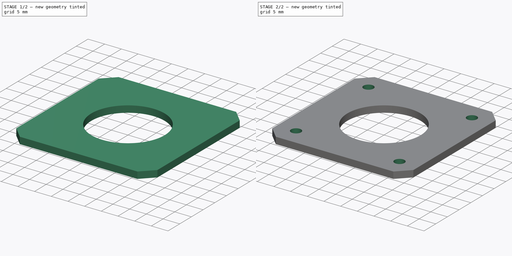
[diagram: build sequence overview — one tinted view per stage of 2, left to right]
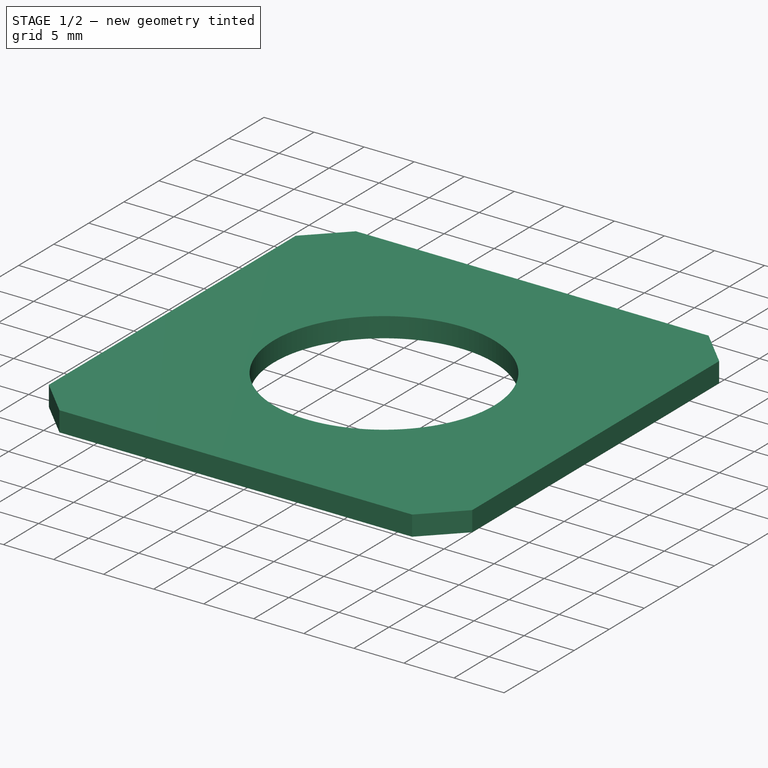
[diagram: stage 1 of 2 — iso view after this stage's code; geometry added in this stage tinted green]
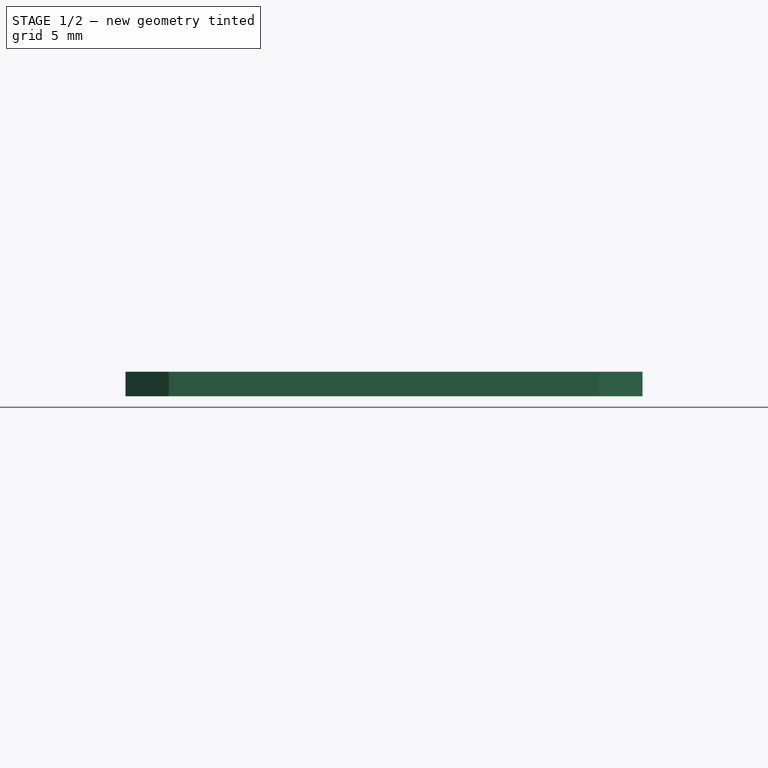
[diagram: stage 1 of 2 — front view after this stage's code; geometry added in this stage tinted green]
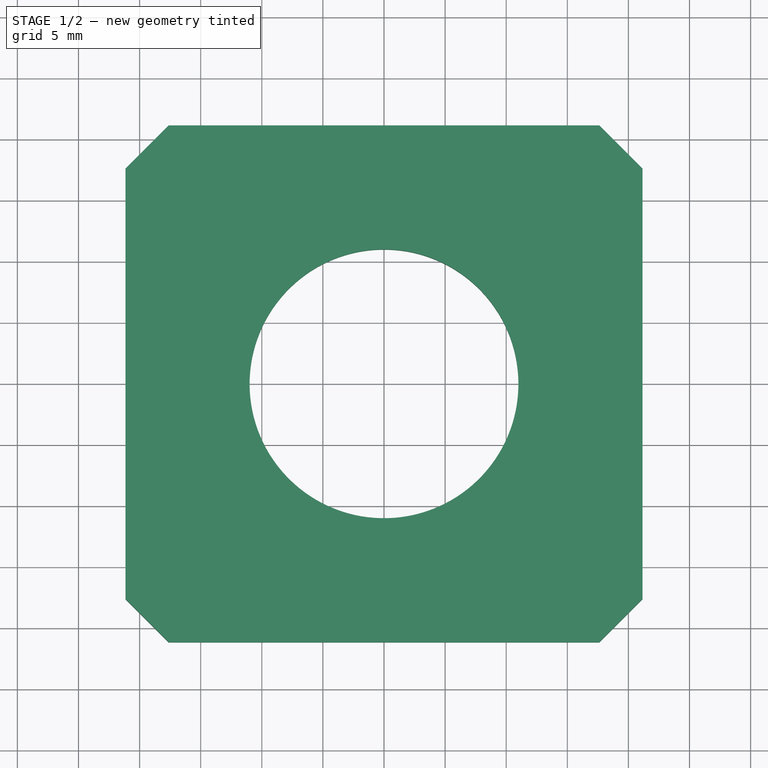
[diagram: stage 1 of 2 — top view after this stage's code; geometry added in this stage tinted green]
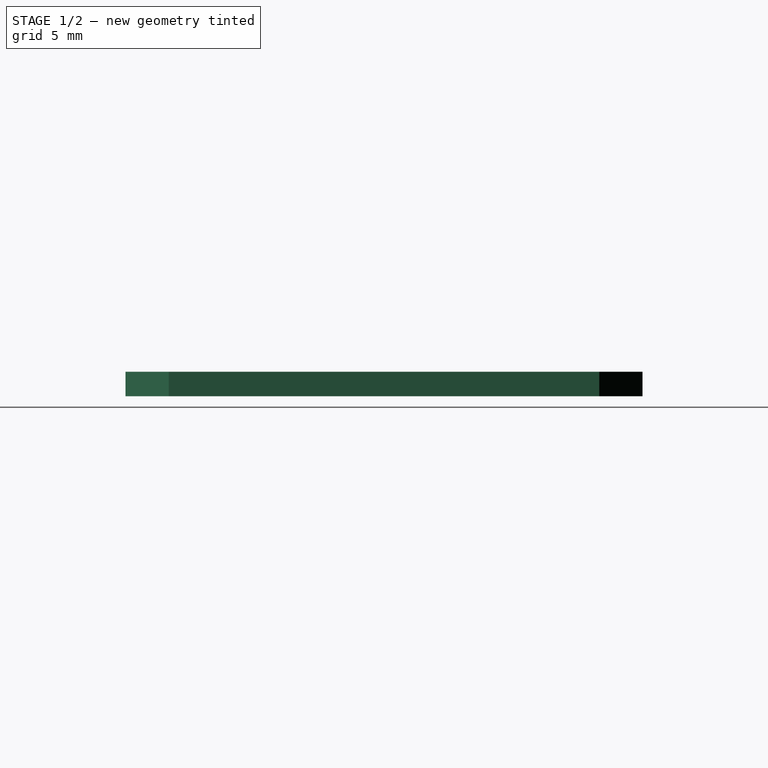
[diagram: stage 1 of 2 — right view after this stage's code; geometry added in this stage tinted green]
FCSTD DOCUMENT  (FreeCAD 1.0R39109 (Git))
Label: Steppermotor-Supportstütze-DerGerät
License: All rights reserved
LicenseURL: https://en.wikipedia.org/wiki/All_rights_reserved
objects: Measure::MeasurePython×3, Sketcher::SketchObject×2, PartDesign::Pad×1, PartDesign::Chamfer×1, PartDesign::Pocket×1, PartDesign::Body×1, App::DocumentObjectGroup×1
note: 14 computed .brp shape members not serialized (recipe doc carries the construction recipe); baked Part::Feature solids carry a one-line shape summary decoded from their .brp

FEATURE [Sketcher::SketchObject] Sketch
  ArcFitTolerance = 1e-06
  AttachmentSupport = -> [XY_Plane]
  FullyConstrained = true
  MakeInternals = false
  MapMode = 5
  sketch-geometry (9):
    g0: LineSegment StartX=-21.15 StartY=-21.15 StartZ=0 EndX=-21.15 EndY=21.15 EndZ=0
    g1: LineSegment StartX=-21.15 StartY=21.15 StartZ=0 EndX=21.15 EndY=21.15 EndZ=0
    g2: LineSegment StartX=21.15 StartY=21.15 StartZ=0 EndX=21.15 EndY=-21.15 EndZ=0
    g3: LineSegment StartX=21.15 StartY=-21.15 StartZ=0 EndX=-21.15 EndY=-21.15 EndZ=0
    g4: LineSegment [constr] StartX=-21.15 StartY=21.15 StartZ=0 EndX=0 EndY=0 EndZ=0
    g5: LineSegment [constr] StartX=0 StartY=0 StartZ=0 EndX=21.15 EndY=21.15 EndZ=0
    g6: LineSegment [constr] StartX=0 StartY=0 StartZ=0 EndX=21.15 EndY=-21.15 EndZ=0
    g7: LineSegment [constr] StartX=0 StartY=0 StartZ=0 EndX=-21.15 EndY=-21.15 EndZ=0
    g8: Circle CenterX=0 CenterY=0 CenterZ=0 NormalX=0 NormalY=0 NormalZ=1 AngleXU=0 Radius=11
  constraints (22):
    c: Vertical(g0)
    c: Coincident(g0,g1)
    c: Horizontal(g1)
    c: Coincident(g1,g2)
    c: Vertical(g2)
    c: Coincident(g2,g3)
    c: Coincident(g3,g0)
    c: Horizontal(g3)
    c: Equal(g1,g2)
    c: Coincident(g4,g0)
    c: Coincident(g4,g-1)
    c: Coincident(g5,g4)
    c: Coincident(g5,g1)
    c: Coincident(g6,g4)
    c: Coincident(g6,g2)
    c: Coincident(g7,g4)
    c: Coincident(g7,g0)
    c: Equal(g7,g6)
    c: Equal(g6,g5)
    c: DistanceY(g0,g0) = 42.3
    c: Diameter(g8) = 22
    c: Coincident(g8,g4)
FEATURE [PartDesign::Pad] Pad
  Direction = (0,0,1)
  Length = 2
  Length2 = 10
  Profile = -> Sketch
  ReferenceAxis = -> Sketch [N_Axis]
  Refine = true
  Suppressed = false
  Type = 0
FEATURE [PartDesign::Chamfer] Chamfer
  Angle = 45
  Base = -> Pad [Edge8,Edge5,Edge1,Edge2]
  BaseFeature = -> Pad
  ChamferType = 0
  FlipDirection = false
  Refine = true
  Size = 3.53553
  Size2 = 1
  SupportTransform = false
  Suppressed = false
  UseAllEdges = false
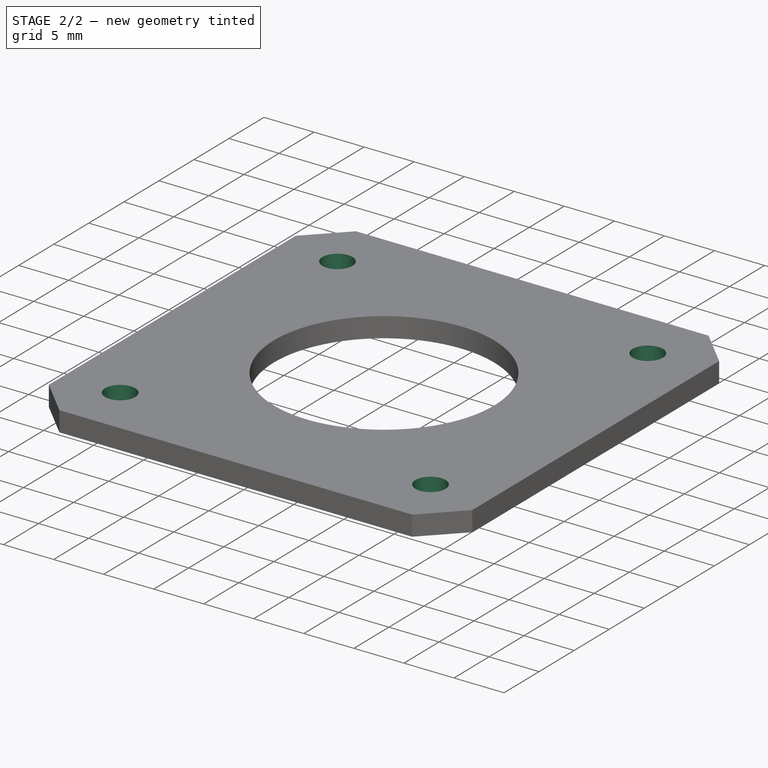
[diagram: stage 2 of 2 — iso view after this stage's code; geometry added in this stage tinted green]
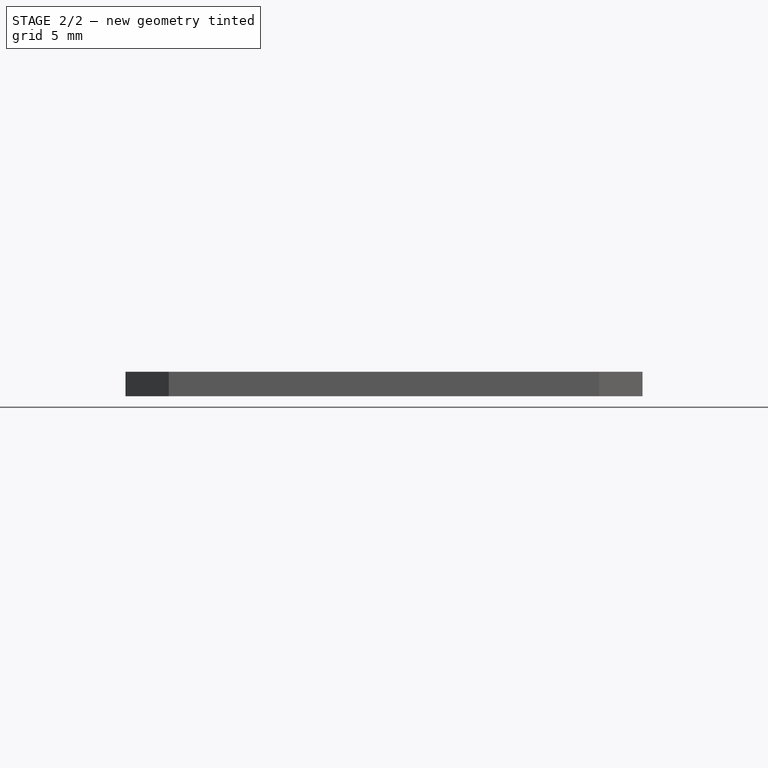
[diagram: stage 2 of 2 — front view after this stage's code; geometry added in this stage tinted green]
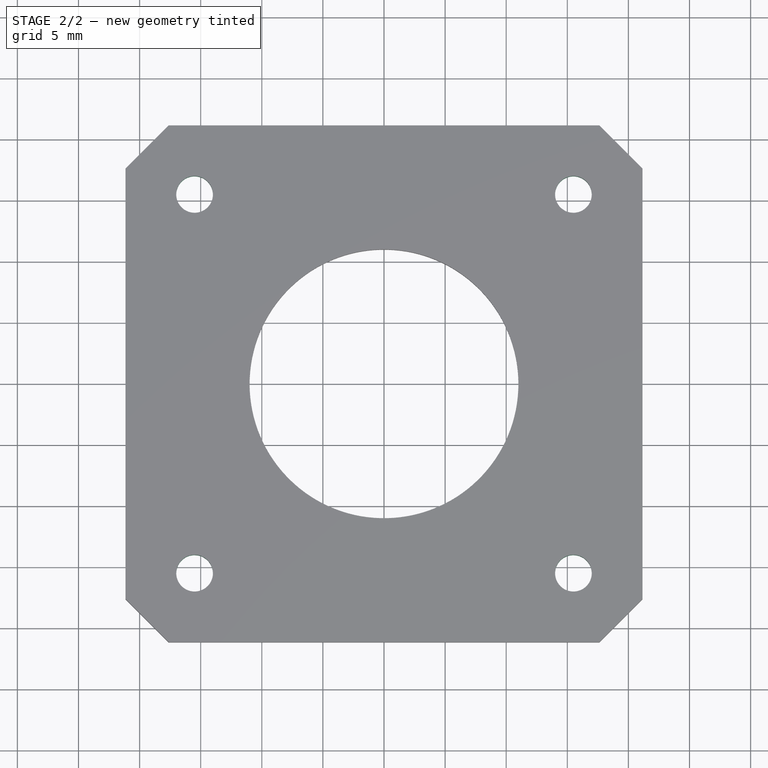
[diagram: stage 2 of 2 — top view after this stage's code; geometry added in this stage tinted green]
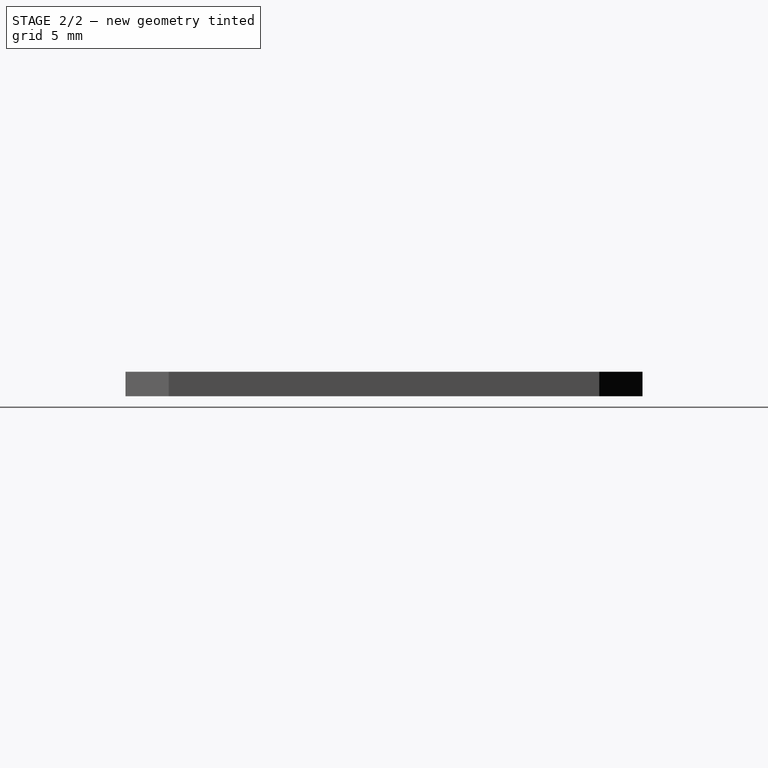
[diagram: stage 2 of 2 — right view after this stage's code; geometry added in this stage tinted green]
FEATURE [Sketcher::SketchObject] Sketch001
  ArcFitTolerance = 1e-06
  AttachmentSupport = -> [Chamfer]
  FullyConstrained = true
  MakeInternals = false
  MapMode = 5
  Placement = pos=(0,0,2) rot=(0,0,1;0rad)
  sketch-geometry (12):
    g0: Circle CenterX=15.5 CenterY=15.5 CenterZ=0 NormalX=0 NormalY=0 NormalZ=1 AngleXU=0 Radius=1.5
    g1: Circle CenterX=-15.5 CenterY=-15.5 CenterZ=0 NormalX=0 NormalY=0 NormalZ=1 AngleXU=0 Radius=1.5
    g2: Circle CenterX=15.5 CenterY=-15.5 CenterZ=0 NormalX=0 NormalY=0 NormalZ=1 AngleXU=0 Radius=1.5
    g3: Circle CenterX=-15.5 CenterY=15.5 CenterZ=0 NormalX=0 NormalY=0 NormalZ=1 AngleXU=0 Radius=1.5
    g4: LineSegment [constr] StartX=-15.5 StartY=15.5 StartZ=0 EndX=15.5 EndY=15.5 EndZ=0
    g5: LineSegment [constr] StartX=15.5 StartY=15.5 StartZ=0 EndX=15.5 EndY=-15.5 EndZ=0
    g6: LineSegment [constr] StartX=15.5 StartY=-15.5 StartZ=0 EndX=-15.5 EndY=-15.5 EndZ=0
    g7: LineSegment [constr] StartX=-15.5 StartY=-15.5 StartZ=0 EndX=-15.5 EndY=15.5 EndZ=0
    g8: LineSegment [constr] StartX=-15.5 StartY=15.5 StartZ=0 EndX=0 EndY=0 EndZ=0
    g9: LineSegment [constr] StartX=0 StartY=0 StartZ=0 EndX=-15.5 EndY=-15.5 EndZ=0
    g10: LineSegment [constr] StartX=0 StartY=0 StartZ=0 EndX=15.5 EndY=-15.5 EndZ=0
    g11: LineSegment [constr] StartX=0 StartY=0 StartZ=0 EndX=15.5 EndY=15.5 EndZ=0
  constraints (28):
    c: Diameter(g0) = 3
    c: Diameter(g1) = 3
    c: Diameter(g2) = 3
    c: Diameter(g3) = 3
    c: Coincident(g4,g3)
    c: Coincident(g4,g0)
    c: Coincident(g4,g5)
    c: Coincident(g5,g2)
    c: Coincident(g5,g6)
    c: Coincident(g6,g1)
    c: Coincident(g6,g7)
    c: Coincident(g7,g4)
    c: Vertical(g7)
    c: Vertical(g5)
    c: Horizontal(g4)
    c: Horizontal(g6)
    c: Coincident(g8,g3)
    c: Coincident(g8,g-1)
    c: Coincident(g9,g8)
    c: Coincident(g9,g1)
    c: Coincident(g10,g8)
    c: Coincident(g10,g2)
    c: Coincident(g11,g8)
    c: Coincident(g11,g0)
    c: Equal(g11,g10)
    c: Equal(g10,g9)
    c: Equal(g4,g7)
    c: DistanceX(g4,g4) = 31
FEATURE [PartDesign::Pocket] Pocket
  BaseFeature = -> Chamfer
  Direction = (0,0,-1)
  Length = 5
  Length2 = 5
  Profile = -> Sketch001
  ReferenceAxis = -> Sketch001 [N_Axis]
  Refine = true
  Suppressed = false
  Type = 1
FEATURE [PartDesign::Body] Body  label="Steppermotor-Supportstütze-DerGerät"
  AllowCompound = false
  Group = -> [Sketch,Pad,Chamfer,Sketch001,Pocket]
  Origin = -> Origin
  Tip = -> Pocket
FEATURE [Measure::MeasurePython] Center_of_Mass  label="Center_of_Mass: COM
X: -0,00 mm
Y: -0,00 mm
Z: 1,00 mm"  # WARN: FeaturePython — macro-defined, semantics opaque (R4)
  Element = -> Body [Chamfer.]
  Placement = pos=(-1.59448e-11,-5.48728e-11,1) rot=(0,0,1;0rad)
  Result = (-1.59448e-11,-5.48728e-11,1)
FEATURE [Measure::MeasurePython] Center_of_Mass001  label="Center_of_Mass001: COM
X: -0,00 mm
Y: -0,00 mm
Z: 1,00 mm"  # WARN: FeaturePython — macro-defined, semantics opaque (R4)
  Element = -> Body
  Placement = pos=(-1.62773e-11,-5.60172e-11,1) rot=(0,0,1;0rad)
  Result = (-1.62773e-11,-5.60172e-11,1)
FEATURE [Measure::MeasurePython] Center_of_Mass002  label="Center_of_Mass002: COM
X: -0,00 mm
Y: -0,00 mm
Z: 1,00 mm"  # WARN: FeaturePython — macro-defined, semantics opaque (R4)
  Element = -> Body
  Placement = pos=(-1.62773e-11,-5.60172e-11,1) rot=(0,0,1;0rad)
  Result = (-1.62773e-11,-5.60172e-11,1)
FEATURE [App::DocumentObjectGroup] Measurements
  Group = -> [Center_of_Mass001,Center_of_Mass002]
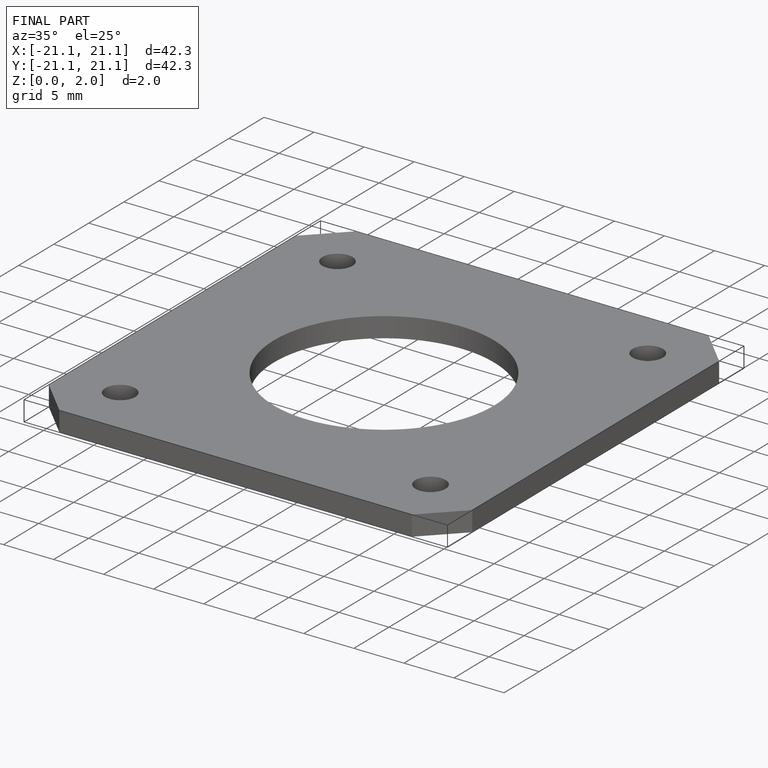
[diagram: finished part — iso view with bounding-box wireframe]
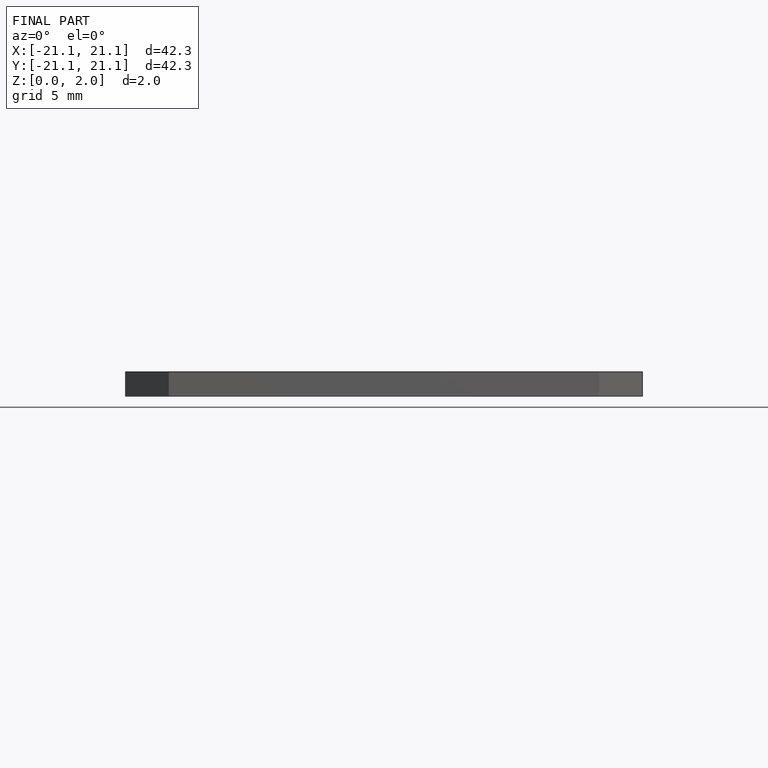
[diagram: finished part — front view with bounding-box wireframe]
